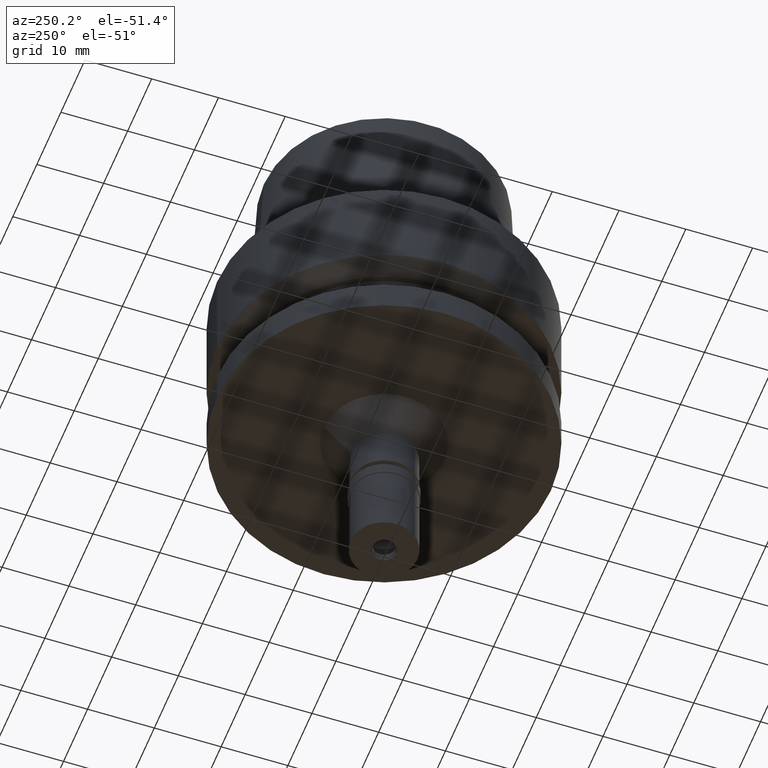
[diagram: clean part render]
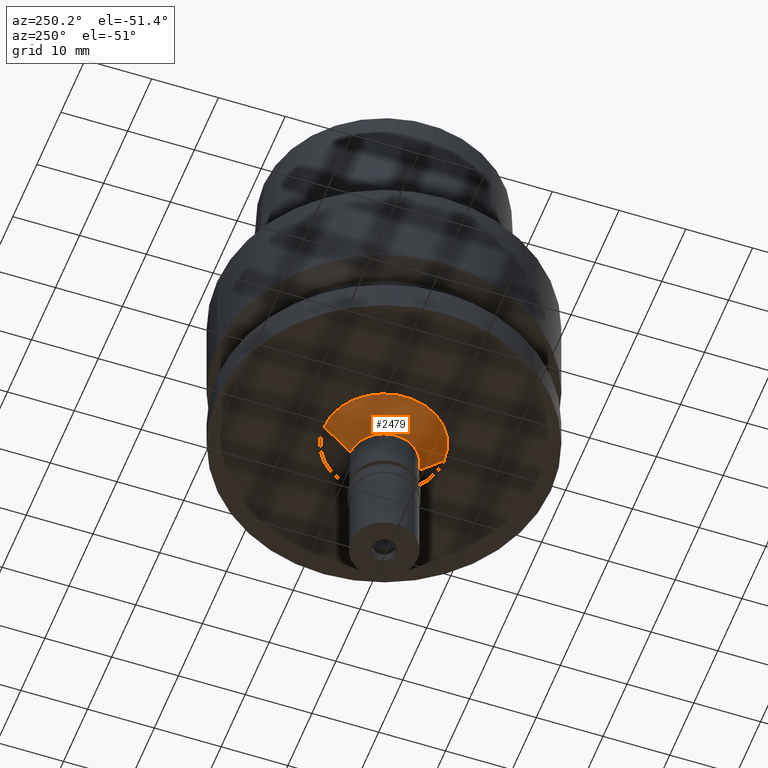
[diagram: same view with one face highlighted and labeled with its STEP entity id]
A machine part, auxiliary view. The second image highlights one B-rep face of the part: STEP entity #2479.
In plain terms, the highlighted conical surface has half-angle 45 deg.
Its self-contained STEP definition (entity closure, byte-faithful):
#11 = ORIENTED_EDGE ( 'NONE', *, *, #686, .F. ) ;
#70 = EDGE_CURVE ( 'NONE', #1289, #774, #2006, .T. ) ;
#177 = DIRECTION ( 'NONE',  ( 0.0000000000000000000, -0.7071067811865474617, -0.7071067811865474617 ) ) ;
#226 = CIRCLE ( 'NONE', #1412, 5.000000000000000000 ) ;
#362 = CARTESIAN_POINT ( 'NONE',  ( 0.0000000000000000000, 0.0000000000000000000, -30.00000000000000000 ) ) ;
#433 = DIRECTION ( 'NONE',  ( 0.0000000000000000000, 1.000000000000000000, 0.0000000000000000000 ) ) ;
#649 = EDGE_CURVE ( 'NONE', #1955, #1783, #2112, .T. ) ;
#686 = EDGE_CURVE ( 'NONE', #1783, #774, #226, .T. ) ;
#771 = CARTESIAN_POINT ( 'NONE',  ( 0.0000000000000000000, 9.000000000000000000, -26.00000000000000000 ) ) ;
#774 = VERTEX_POINT ( 'NONE', #2473 ) ;
#807 = EDGE_CURVE ( 'NONE', #1955, #1289, #1363, .T. ) ;
#823 = FACE_OUTER_BOUND ( 'NONE', #1764, .T. ) ;
#842 = AXIS2_PLACEMENT_3D ( 'NONE', #2502, #1878, #433 ) ;
#998 = DIRECTION ( 'NONE',  ( 0.0000000000000000000, -1.000000000000000000, 0.0000000000000000000 ) ) ;
#1006 = VECTOR ( 'NONE', #2036, 1000.000000000000114 ) ;
#1051 = AXIS2_PLACEMENT_3D ( 'NONE', #2682, #2020, #2031 ) ;
#1223 = DIRECTION ( 'NONE',  ( 0.0000000000000000000, 0.0000000000000000000, -1.000000000000000000 ) ) ;
#1289 = VERTEX_POINT ( 'NONE', #771 ) ;
#1363 = CIRCLE ( 'NONE', #1051, 9.000000000000000000 ) ;
#1397 = CARTESIAN_POINT ( 'NONE',  ( 0.0000000000000000000, 9.000000000000000000, -26.00000000000000000 ) ) ;
#1412 = AXIS2_PLACEMENT_3D ( 'NONE', #362, #1223, #998 ) ;
#1582 = ORIENTED_EDGE ( 'NONE', *, *, #649, .F. ) ;
#1764 = EDGE_LOOP ( 'NONE', ( #11, #1582, #2616, #1834 ) ) ;
#1783 = VERTEX_POINT ( 'NONE', #1795 ) ;
#1795 = CARTESIAN_POINT ( 'NONE',  ( 0.0000000000000000000, -5.000000000000000000, -30.00000000000000000 ) ) ;
#1799 = CONICAL_SURFACE ( 'NONE', #842, 7.000000000000000000, 0.7853981633972997312 ) ;
#1811 = VECTOR ( 'NONE', #177, 1000.000000000000114 ) ;
#1834 = ORIENTED_EDGE ( 'NONE', *, *, #70, .T. ) ;
#1878 = DIRECTION ( 'NONE',  ( 0.0000000000000000000, 0.0000000000000000000, 1.000000000000000000 ) ) ;
#1913 = CARTESIAN_POINT ( 'NONE',  ( 0.0000000000000000000, -9.000000000000000000, -26.00000000000000000 ) ) ;
#1955 = VERTEX_POINT ( 'NONE', #2292 ) ;
#2006 = LINE ( 'NONE', #1397, #1811 ) ;
#2020 = DIRECTION ( 'NONE',  ( 0.0000000000000000000, 0.0000000000000000000, -1.000000000000000000 ) ) ;
#2031 = DIRECTION ( 'NONE',  ( 0.0000000000000000000, -1.000000000000000000, 0.0000000000000000000 ) ) ;
#2036 = DIRECTION ( 'NONE',  ( 0.0000000000000000000, 0.7071067811865474617, -0.7071067811865474617 ) ) ;
#2112 = LINE ( 'NONE', #1913, #1006 ) ;
#2292 = CARTESIAN_POINT ( 'NONE',  ( 0.0000000000000000000, -9.000000000000000000, -26.00000000000000000 ) ) ;
#2473 = CARTESIAN_POINT ( 'NONE',  ( 0.0000000000000000000, 5.000000000000000000, -30.00000000000000000 ) ) ;
#2479 = ADVANCED_FACE ( 'NONE', ( #823 ), #1799, .T. ) ;
#2502 = CARTESIAN_POINT ( 'NONE',  ( 0.0000000000000000000, 0.0000000000000000000, -28.00000000000000000 ) ) ;
#2616 = ORIENTED_EDGE ( 'NONE', *, *, #807, .T. ) ;
#2682 = CARTESIAN_POINT ( 'NONE',  ( 0.0000000000000000000, 0.0000000000000000000, -26.00000000000000000 ) ) ;